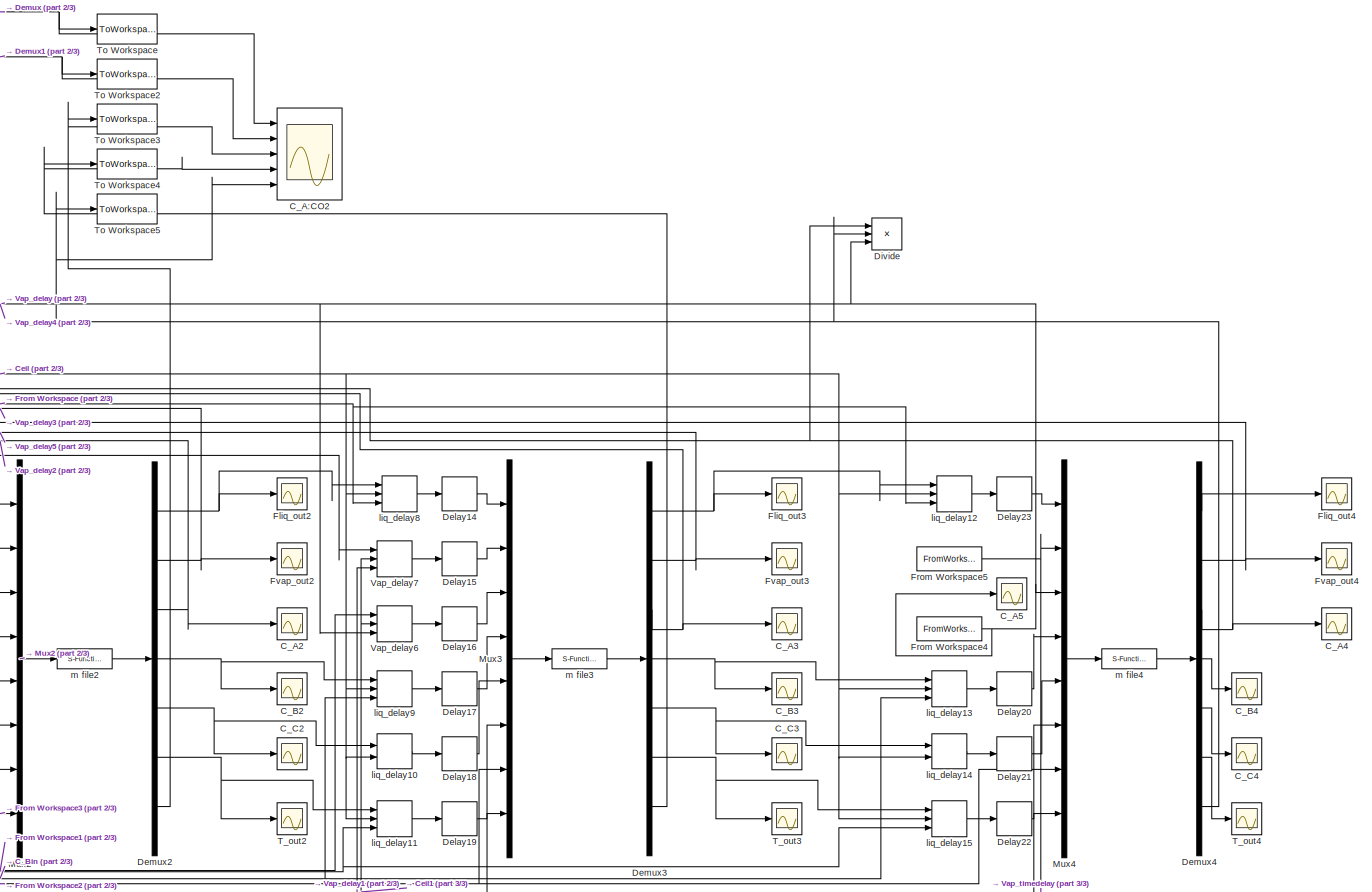
[diagram: root canvas - part 1/3, right side, full height]
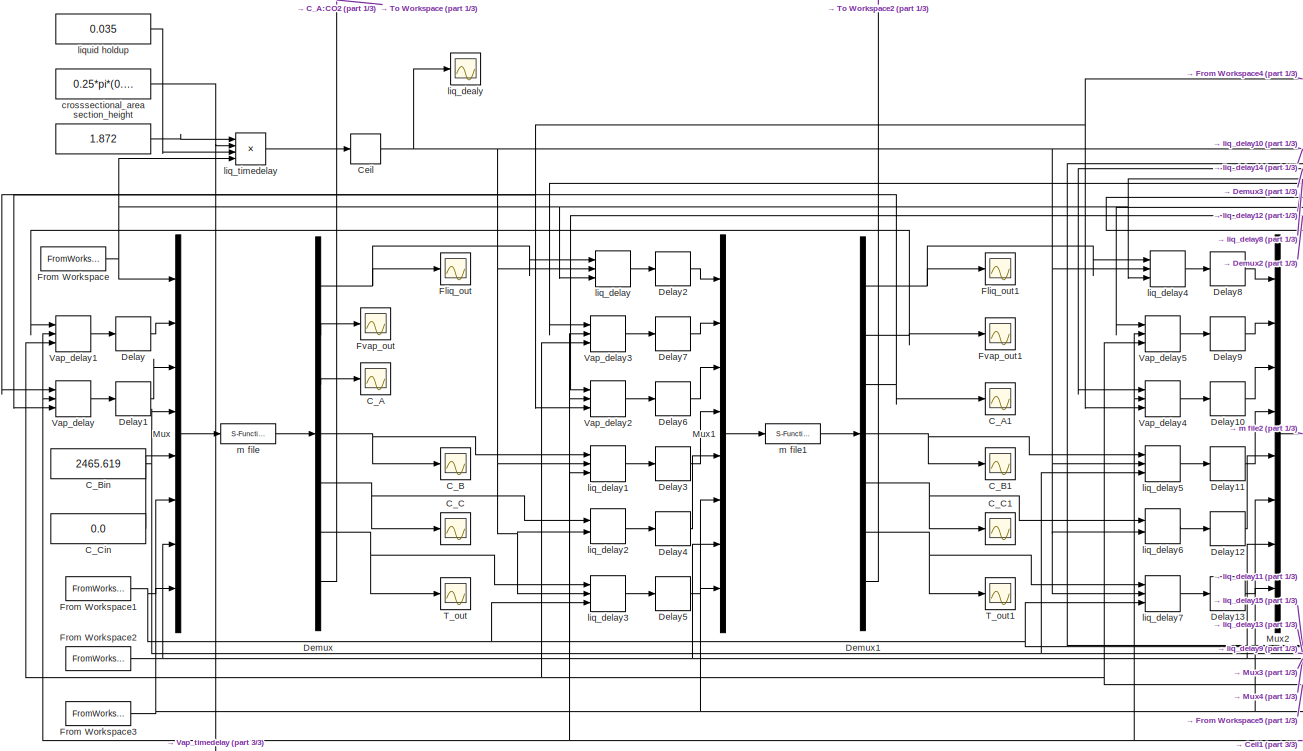
[diagram: root canvas - part 2/3, middle left region]
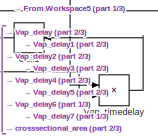
[diagram: root canvas - part 3/3, bottom right region]
MODEL slx_84e19ae81417
KIND model
CONFIG AbsTol = 1E-8
CONFIG EnableMultiTasking = off
CONFIG FixedStep = 1
CONFIG MaxStep = auto
CONFIG MinStep = auto
CONFIG RelTol = 1e-5
CONFIG SampleTimeConstraint = Unconstrained
CONFIG SolverName = VariableStepAuto
CONFIG StartTime = 0
CONFIG StopTime = 5631
BLOCK [Scope] C_A
  Floating = off
  NumInputPorts = 1
  Ports = [1]
  ScopeSpecificationString = Simulink.scopes.TimeScopeBlockCfg('CurrentConfiguration', extmgr.ConfigurationSet(extmgr.Configuration('Core','General UI',true),extmgr.Configuration('Core','Source UI',true),extmgr.Configuration('Sources','WiredSimulink',true,'DataLoggingVariableName','ScopeData2','DataLoggingSaveFormat','Array'),extmgr.Configuration('Visuals','Time Domain',true,'SerializedDisplays',{struct('MinYLimReal','-0.0038...<+1464ch>
BLOCK [Scope] C_A1
  Floating = off
  NumInputPorts = 1
  Ports = [1]
  ScopeSpecificationString = Simulink.scopes.TimeScopeBlockCfg('CurrentConfiguration', extmgr.ConfigurationSet(extmgr.Configuration('Core','General UI',true),extmgr.Configuration('Core','Source UI',true),extmgr.Configuration('Sources','WiredSimulink',true,'DataLoggingVariableName','ScopeData2','DataLoggingSaveFormat','Array'),extmgr.Configuration('Visuals','Time Domain',true,'SerializedDisplays',{struct('MinYLimReal','0.00000...<+1479ch>
BLOCK [Scope] C_A2
  Floating = off
  NumInputPorts = 1
  Ports = [1]
  ScopeSpecificationString = Simulink.scopes.TimeScopeBlockCfg('CurrentConfiguration', extmgr.ConfigurationSet(extmgr.Configuration('Core','General UI',true),extmgr.Configuration('Core','Source UI',true),extmgr.Configuration('Sources','WiredSimulink',true,'DataLoggingVariableName','ScopeData8','DataLoggingSaveFormat','Array'),extmgr.Configuration('Visuals','Time Domain',true,'SerializedDisplays',{struct('MinYLimReal','-0.0961...<+1454ch>
BLOCK [Scope] C_A3
  Floating = off
  NumInputPorts = 1
  Ports = [1]
  ScopeSpecificationString = Simulink.scopes.TimeScopeBlockCfg('CurrentConfiguration', extmgr.ConfigurationSet(extmgr.Configuration('Core','General UI',true),extmgr.Configuration('Core','Source UI',true),extmgr.Configuration('Sources','WiredSimulink',true,'DataLoggingVariableName','ScopeData14','DataLoggingSaveFormat','Array'),extmgr.Configuration('Visuals','Time Domain',true,'SerializedDisplays',{struct('MinYLimReal','-0.932...<+1463ch>
BLOCK [Scope] C_A4
  Floating = off
  NumInputPorts = 1
  Ports = [1]
  ScopeSpecificationString = Simulink.scopes.TimeScopeBlockCfg('CurrentConfiguration', extmgr.ConfigurationSet(extmgr.Configuration('Core','General UI',true),extmgr.Configuration('Core','Source UI',true),extmgr.Configuration('Sources','WiredSimulink',true,'DataLoggingVariableName','ScopeData15','DataLoggingSaveFormat','Array'),extmgr.Configuration('Visuals','Time Domain',true,'SerializedDisplays',{struct('MinYLimReal','-0.092...<+1455ch>
BLOCK [Scope] C_A5
  Floating = off
  NumInputPorts = 1
  Ports = [1]
  ScopeSpecificationString = Simulink.scopes.TimeScopeBlockCfg('CurrentConfiguration', extmgr.ConfigurationSet(extmgr.Configuration('Core','General UI',true),extmgr.Configuration('Core','Source UI',true),extmgr.Configuration('Sources','WiredSimulink',true,'DataLoggingVariableName','ScopeData1','DataLoggingSaveFormat','Array'),extmgr.Configuration('Visuals','Time Domain',true,'SerializedDisplays',{struct('MinYLimReal','6.25445...<+1576ch>
BLOCK [Scope] C_A:CO2
  Floating = off
  NumInputPorts = 5
  Ports = [5]
  ScopeSpecificationString = Simulink.scopes.TimeScopeBlockCfg('CurrentConfiguration', extmgr.ConfigurationSet(extmgr.Configuration('Core','General UI',true,'FigureColor',[0 0 0]),extmgr.Configuration('Core','Source UI',true),extmgr.Configuration('Sources','WiredSimulink',true,'DataLoggingVariableName','CA_all','DataLoggingSaveFormat','Array'),extmgr.Configuration('Visuals','Time Domain',true,'PlotType','Line','SerializedDisp...<+2349ch>
BLOCK [Scope] C_B
  Floating = off
  NumInputPorts = 1
  Ports = [1]
  ScopeSpecificationString = Simulink.scopes.TimeScopeBlockCfg('CurrentConfiguration', extmgr.ConfigurationSet(extmgr.Configuration('Core','General UI',true),extmgr.Configuration('Core','Source UI',true),extmgr.Configuration('Sources','WiredSimulink',true,'DataLoggingVariableName','Y1','DataLoggingSaveFormat','Array','DataLogging',true),extmgr.Configuration('Visuals','Time Domain',true,'SerializedDisplays',{struct('MinYLimRea...<+1479ch>
BLOCK [Scope] C_B1
  Floating = off
  NumInputPorts = 1
  Ports = [1]
  ScopeSpecificationString = Simulink.scopes.TimeScopeBlockCfg('CurrentConfiguration', extmgr.ConfigurationSet(extmgr.Configuration('Core','General UI',true),extmgr.Configuration('Core','Source UI',true),extmgr.Configuration('Sources','WiredSimulink',true,'DataLoggingVariableName','ScopeData3','DataLoggingSaveFormat','Array','DataLogging',true),extmgr.Configuration('Visuals','Time Domain',true,'SerializedDisplays',{struct('Mi...<+1494ch>
BLOCK [Scope] C_B2
  Floating = off
  NumInputPorts = 1
  Ports = [1]
  ScopeSpecificationString = Simulink.scopes.TimeScopeBlockCfg('CurrentConfiguration', extmgr.ConfigurationSet(extmgr.Configuration('Core','General UI',true),extmgr.Configuration('Core','Source UI',true),extmgr.Configuration('Sources','WiredSimulink',true,'DataLoggingVariableName','ScopeData9','DataLoggingSaveFormat','Array','DataLogging',true),extmgr.Configuration('Visuals','Time Domain',true,'SerializedDisplays',{struct('Mi...<+1466ch>
BLOCK [Scope] C_B3
  Floating = off
  NumInputPorts = 1
  Ports = [1]
  ScopeSpecificationString = Simulink.scopes.TimeScopeBlockCfg('CurrentConfiguration', extmgr.ConfigurationSet(extmgr.Configuration('Core','General UI',true),extmgr.Configuration('Core','Source UI',true),extmgr.Configuration('Sources','WiredSimulink',true,'DataLoggingVariableName','ScopeData16','DataLoggingSaveFormat','Array','DataLogging',true),extmgr.Configuration('Visuals','Time Domain',true,'SerializedDisplays',{struct('M...<+1489ch>
BLOCK [Scope] C_B4
  Floating = off
  NumInputPorts = 1
  Ports = [1]
  ScopeSpecificationString = Simulink.scopes.TimeScopeBlockCfg('CurrentConfiguration', extmgr.ConfigurationSet(extmgr.Configuration('Core','General UI',true),extmgr.Configuration('Core','Source UI',true),extmgr.Configuration('Sources','WiredSimulink',true,'DataLoggingVariableName','ScopeData17','DataLoggingSaveFormat','Array','DataLogging',true),extmgr.Configuration('Visuals','Time Domain',true,'SerializedDisplays',{struct('M...<+1491ch>
BLOCK [Constant] C_Bin
  Value = 2465.619
BLOCK [Scope] C_C
  Floating = off
  NumInputPorts = 1
  Ports = [1]
  ScopeSpecificationString = Simulink.scopes.TimeScopeBlockCfg('CurrentConfiguration', extmgr.ConfigurationSet(extmgr.Configuration('Core','General UI',true),extmgr.Configuration('Core','Source UI',true),extmgr.Configuration('Sources','WiredSimulink',true,'DataLoggingVariableName','ScopeData1','DataLoggingSaveFormat','Array'),extmgr.Configuration('Visuals','Time Domain',true,'SerializedDisplays',{struct('MinYLimReal','-0.0003...<+1472ch>
BLOCK [Scope] C_C1
  Floating = off
  NumInputPorts = 1
  Ports = [1]
  ScopeSpecificationString = Simulink.scopes.TimeScopeBlockCfg('CurrentConfiguration', extmgr.ConfigurationSet(extmgr.Configuration('Core','General UI',true),extmgr.Configuration('Core','Source UI',true),extmgr.Configuration('Sources','WiredSimulink',true,'DataLoggingVariableName','ScopeData4','DataLoggingSaveFormat','Array'),extmgr.Configuration('Visuals','Time Domain',true,'SerializedDisplays',{struct('MinYLimReal','-642696...<+2131ch>
BLOCK [Scope] C_C2
  Floating = off
  NumInputPorts = 1
  Ports = [1]
  ScopeSpecificationString = Simulink.scopes.TimeScopeBlockCfg('CurrentConfiguration', extmgr.ConfigurationSet(extmgr.Configuration('Core','General UI',true),extmgr.Configuration('Core','Source UI',true),extmgr.Configuration('Sources','WiredSimulink',true,'DataLoggingVariableName','ScopeData10','DataLoggingSaveFormat','Array'),extmgr.Configuration('Visuals','Time Domain',true,'SerializedDisplays',{struct('MinYLimReal','-0.000...<+1476ch>
BLOCK [Scope] C_C3
  Floating = off
  NumInputPorts = 1
  Ports = [1]
  ScopeSpecificationString = Simulink.scopes.TimeScopeBlockCfg('CurrentConfiguration', extmgr.ConfigurationSet(extmgr.Configuration('Core','General UI',true),extmgr.Configuration('Core','Source UI',true),extmgr.Configuration('Sources','WiredSimulink',true,'DataLoggingVariableName','ScopeData18','DataLoggingSaveFormat','Array'),extmgr.Configuration('Visuals','Time Domain',true,'SerializedDisplays',{struct('MinYLimReal','-0.000...<+1499ch>
BLOCK [Scope] C_C4
  Floating = off
  NumInputPorts = 1
  Ports = [1]
  ScopeSpecificationString = Simulink.scopes.TimeScopeBlockCfg('CurrentConfiguration', extmgr.ConfigurationSet(extmgr.Configuration('Core','General UI',true),extmgr.Configuration('Core','Source UI',true),extmgr.Configuration('Sources','WiredSimulink',true,'DataLoggingVariableName','ScopeData19','DataLoggingSaveFormat','Array'),extmgr.Configuration('Visuals','Time Domain',true,'SerializedDisplays',{struct('MinYLimReal','-0.015...<+1476ch>
BLOCK [Constant] C_Cin
  Value = 0.0
BLOCK [Rounding] Ceil
  Operator = ceil
BLOCK [Rounding] Ceil1
  Operator = ceil
BLOCK [Delay] Delay
  DelayLength = 1
  InitialCondition = 0
  InputPortMap = u0
  Ports = [1, 1]
BLOCK [Delay] Delay1
  DelayLength = 1
  InitialCondition = 0
  InputPortMap = u0
  Ports = [1, 1]
BLOCK [Delay] Delay10
  DelayLength = 1
  InitialCondition = 0
  InputPortMap = u0
  Ports = [1, 1]
BLOCK [Delay] Delay11
  DelayLength = 1
  InitialCondition = 0
  InputPortMap = u0
  Ports = [1, 1]
BLOCK [Delay] Delay12
  DelayLength = 1
  InitialCondition = 0
  InputPortMap = u0
  Ports = [1, 1]
BLOCK [Delay] Delay13
  DelayLength = 1
  InitialCondition = 0
  InputPortMap = u0
  Ports = [1, 1]
BLOCK [Delay] Delay14
  DelayLength = 1
  InitialCondition = 0
  InputPortMap = u0
  Ports = [1, 1]
BLOCK [Delay] Delay15
  DelayLength = 1
  InitialCondition = 0
  InputPortMap = u0
  Ports = [1, 1]
BLOCK [Delay] Delay16
  DelayLength = 1
  InitialCondition = 0
  InputPortMap = u0
  Ports = [1, 1]
BLOCK [Delay] Delay17
  DelayLength = 1
  InitialCondition = 0
  InputPortMap = u0
  Ports = [1, 1]
BLOCK [Delay] Delay18
  DelayLength = 1
  InitialCondition = 0
  InputPortMap = u0
  Ports = [1, 1]
BLOCK [Delay] Delay19
  DelayLength = 1
  InitialCondition = 0
  InputPortMap = u0
  Ports = [1, 1]
BLOCK [Delay] Delay2
  DelayLength = 1
  InitialCondition = 0
  InputPortMap = u0
  Ports = [1, 1]
BLOCK [Delay] Delay20
  DelayLength = 1
  InitialCondition = 0
  InputPortMap = u0
  Ports = [1, 1]
BLOCK [Delay] Delay21
  DelayLength = 1
  InitialCondition = 0
  InputPortMap = u0
  Ports = [1, 1]
BLOCK [Delay] Delay22
  DelayLength = 1
  InitialCondition = 0
  InputPortMap = u0
  Ports = [1, 1]
BLOCK [Delay] Delay23
  DelayLength = 1
  InitialCondition = 0
  InputPortMap = u0
  Ports = [1, 1]
BLOCK [Delay] Delay3
  DelayLength = 1
  InitialCondition = 0
  InputPortMap = u0
  Ports = [1, 1]
BLOCK [Delay] Delay4
  DelayLength = 1
  InitialCondition = 0
  InputPortMap = u0
  Ports = [1, 1]
BLOCK [Delay] Delay5
  DelayLength = 1
  InitialCondition = 0
  InputPortMap = u0
  Ports = [1, 1]
BLOCK [Delay] Delay6
  DelayLength = 1
  InitialCondition = 0
  InputPortMap = u0
  Ports = [1, 1]
BLOCK [Delay] Delay7
  DelayLength = 1
  InitialCondition = 0
  InputPortMap = u0
  Ports = [1, 1]
BLOCK [Delay] Delay8
  DelayLength = 1
  InitialCondition = 0
  InputPortMap = u0
  Ports = [1, 1]
BLOCK [Delay] Delay9
  DelayLength = 1
  InitialCondition = 0
  InputPortMap = u0
  Ports = [1, 1]
BLOCK [Demux] Demux
  DisplayOption = none
  Outputs = 7
  Ports = [1, 7]
BLOCK [Demux] Demux1
  DisplayOption = none
  Outputs = 7
  Ports = [1, 7]
BLOCK [Demux] Demux2
  DisplayOption = none
  Outputs = 7
  Ports = [1, 7]
BLOCK [Demux] Demux3
  DisplayOption = none
  Outputs = 7
  Ports = [1, 7]
BLOCK [Demux] Demux4
  DisplayOption = none
  Outputs = 7
  Ports = [1, 7]
BLOCK [Product] Divide
  Commented = on
  Inputs = */*
  Ports = [3, 1]
BLOCK [Scope] Fliq_out
  Floating = off
  NumInputPorts = 1
  Ports = [1]
  ScopeSpecificationString = Simulink.scopes.TimeScopeBlockCfg('CurrentConfiguration', extmgr.ConfigurationSet(extmgr.Configuration('Core','General UI',true),extmgr.Configuration('Core','Source UI',true),extmgr.Configuration('Sources','WiredSimulink',true,'DataLoggingVariableName','ScopeData1','DataLoggingSaveFormat','Array'),extmgr.Configuration('Visuals','Time Domain',true,'SerializedDisplays',{struct('MinYLimReal','0.00006...<+1492ch>
BLOCK [Scope] Fliq_out1
  Floating = off
  NumInputPorts = 1
  Ports = [1]
  ScopeSpecificationString = Simulink.scopes.TimeScopeBlockCfg('CurrentConfiguration', extmgr.ConfigurationSet(extmgr.Configuration('Core','General UI',true),extmgr.Configuration('Core','Source UI',true),extmgr.Configuration('Sources','WiredSimulink',true,'DataLoggingVariableName','ScopeData5','DataLoggingSaveFormat','Array'),extmgr.Configuration('Visuals','Time Domain',true,'SerializedDisplays',{struct('MinYLimReal','-0.0000...<+1461ch>
BLOCK [Scope] Fliq_out2
  Floating = off
  NumInputPorts = 1
  Ports = [1]
  ScopeSpecificationString = Simulink.scopes.TimeScopeBlockCfg('CurrentConfiguration', extmgr.ConfigurationSet(extmgr.Configuration('Core','General UI',true),extmgr.Configuration('Core','Source UI',true),extmgr.Configuration('Sources','WiredSimulink',true,'DataLoggingVariableName','ScopeData11','DataLoggingSaveFormat','Array'),extmgr.Configuration('Visuals','Time Domain',true,'SerializedDisplays',{struct('MinYLimReal','-0.000...<+1462ch>
BLOCK [Scope] Fliq_out3
  Floating = off
  NumInputPorts = 1
  Ports = [1]
  ScopeSpecificationString = Simulink.scopes.TimeScopeBlockCfg('CurrentConfiguration', extmgr.ConfigurationSet(extmgr.Configuration('Core','General UI',true),extmgr.Configuration('Core','Source UI',true),extmgr.Configuration('Sources','WiredSimulink',true,'DataLoggingVariableName','ScopeData20','DataLoggingSaveFormat','Array'),extmgr.Configuration('Visuals','Time Domain',true,'SerializedDisplays',{struct('MinYLimReal','-0.000...<+1462ch>
BLOCK [Scope] Fliq_out4
  Floating = off
  NumInputPorts = 1
  Ports = [1]
  ScopeSpecificationString = Simulink.scopes.TimeScopeBlockCfg('CurrentConfiguration', extmgr.ConfigurationSet(extmgr.Configuration('Core','General UI',true),extmgr.Configuration('Core','Source UI',true),extmgr.Configuration('Sources','WiredSimulink',true,'DataLoggingVariableName','ScopeData21','DataLoggingSaveFormat','Array'),extmgr.Configuration('Visuals','Time Domain',true,'SerializedDisplays',{struct('MinYLimReal','-0.000...<+1462ch>
BLOCK [FromWorkspace] From Workspace
  OutputAfterFinalValue = Holding final value
  SampleTime = 43
  VariableName = Fliq_in
BLOCK [FromWorkspace] From Workspace1
  OutputAfterFinalValue = Holding final value
  SampleTime = 43
  VariableName = Tliq_in
BLOCK [FromWorkspace] From Workspace2
  OutputAfterFinalValue = Holding final value
  SampleTime = 43
  VariableName = P_bot
BLOCK [FromWorkspace] From Workspace3
  OutputAfterFinalValue = Holding final value
  SampleTime = 43
  VariableName = P_top
BLOCK [FromWorkspace] From Workspace4
  OutputAfterFinalValue = Holding final value
  SampleTime = 43
  VariableName = C_Ain
BLOCK [FromWorkspace] From Workspace5
  OutputAfterFinalValue = Holding final value
  SampleTime = 43
  VariableName = Fvap
BLOCK [Scope] Fvap_out
  Floating = off
  NumInputPorts = 1
  Ports = [1]
  ScopeSpecificationString = Simulink.scopes.TimeScopeBlockCfg('CurrentConfiguration', extmgr.ConfigurationSet(extmgr.Configuration('Core','General UI',true),extmgr.Configuration('Core','Source UI',true),extmgr.Configuration('Sources','WiredSimulink',true,'DataLoggingVariableName','ScopeData6','DataLoggingSaveFormat','Array'),extmgr.Configuration('Visuals','Time Domain',true,'SerializedDisplays',{struct('MinYLimReal','-0.0000...<+1478ch>
BLOCK [Scope] Fvap_out1
  Floating = off
  NumInputPorts = 1
  Ports = [1]
  ScopeSpecificationString = Simulink.scopes.TimeScopeBlockCfg('CurrentConfiguration', extmgr.ConfigurationSet(extmgr.Configuration('Core','General UI',true),extmgr.Configuration('Core','Source UI',true),extmgr.Configuration('Sources','WiredSimulink',true,'DataLoggingVariableName','ScopeData6','DataLoggingSaveFormat','Array'),extmgr.Configuration('Visuals','Time Domain',true,'SerializedDisplays',{struct('MinYLimReal','0.19043...<+1451ch>
BLOCK [Scope] Fvap_out2
  Floating = off
  NumInputPorts = 1
  Ports = [1]
  ScopeSpecificationString = Simulink.scopes.TimeScopeBlockCfg('CurrentConfiguration', extmgr.ConfigurationSet(extmgr.Configuration('Core','General UI',true),extmgr.Configuration('Core','Source UI',true),extmgr.Configuration('Sources','WiredSimulink',true,'DataLoggingVariableName','ScopeData12','DataLoggingSaveFormat','Array'),extmgr.Configuration('Visuals','Time Domain',true,'SerializedDisplays',{struct('MinYLimReal','0.1884...<+1452ch>
BLOCK [Scope] Fvap_out3
  Floating = off
  NumInputPorts = 1
  Ports = [1]
  ScopeSpecificationString = Simulink.scopes.TimeScopeBlockCfg('CurrentConfiguration', extmgr.ConfigurationSet(extmgr.Configuration('Core','General UI',true),extmgr.Configuration('Core','Source UI',true),extmgr.Configuration('Sources','WiredSimulink',true,'DataLoggingVariableName','ScopeData22','DataLoggingSaveFormat','Array'),extmgr.Configuration('Visuals','Time Domain',true,'SerializedDisplays',{struct('MinYLimReal','-0.000...<+1454ch>
BLOCK [Scope] Fvap_out4
  Floating = off
  NumInputPorts = 1
  Ports = [1]
  ScopeSpecificationString = Simulink.scopes.TimeScopeBlockCfg('CurrentConfiguration', extmgr.ConfigurationSet(extmgr.Configuration('Core','General UI',true),extmgr.Configuration('Core','Source UI',true),extmgr.Configuration('Sources','WiredSimulink',true,'DataLoggingVariableName','ScopeData23','DataLoggingSaveFormat','Array'),extmgr.Configuration('Visuals','Time Domain',true,'SerializedDisplays',{struct('MinYLimReal','0.0016...<+1452ch>
BLOCK [Mux] Mux
  Inputs = 8
  Ports = [8, 1]
BLOCK [Mux] Mux1
  Inputs = 8
  Ports = [8, 1]
BLOCK [Mux] Mux2
  Inputs = 8
  Ports = [8, 1]
BLOCK [Mux] Mux3
  Inputs = 8
  Ports = [8, 1]
BLOCK [Mux] Mux4
  Inputs = 8
  Ports = [8, 1]
BLOCK [Scope] T_out
  Floating = off
  NumInputPorts = 1
  Ports = [1]
  ScopeSpecificationString = Simulink.scopes.TimeScopeBlockCfg('CurrentConfiguration', extmgr.ConfigurationSet(extmgr.Configuration('Core','General UI',true),extmgr.Configuration('Core','Source UI',true),extmgr.Configuration('Sources','WiredSimulink',true,'DataLoggingVariableName','ScopeData4','DataLoggingSaveFormat','Array'),extmgr.Configuration('Visuals','Time Domain',true,'SerializedDisplays',{struct('MinYLimReal','304.739...<+1511ch>
BLOCK [Scope] T_out1
  Floating = off
  NumInputPorts = 1
  Ports = [1]
  ScopeSpecificationString = Simulink.scopes.TimeScopeBlockCfg('CurrentConfiguration', extmgr.ConfigurationSet(extmgr.Configuration('Core','General UI',true),extmgr.Configuration('Core','Source UI',true),extmgr.Configuration('Sources','WiredSimulink',true,'DataLoggingVariableName','ScopeData7','DataLoggingSaveFormat','Array'),extmgr.Configuration('Visuals','Time Domain',true,'SerializedDisplays',{struct('MinYLimReal','323.736...<+1512ch>
BLOCK [Scope] T_out2
  Floating = off
  NumInputPorts = 1
  Ports = [1]
  ScopeSpecificationString = Simulink.scopes.TimeScopeBlockCfg('CurrentConfiguration', extmgr.ConfigurationSet(extmgr.Configuration('Core','General UI',true),extmgr.Configuration('Core','Source UI',true),extmgr.Configuration('Sources','WiredSimulink',true,'DataLoggingVariableName','ScopeData13','DataLoggingSaveFormat','Array'),extmgr.Configuration('Visuals','Time Domain',true,'SerializedDisplays',{struct('MinYLimReal','323.73...<+1487ch>
BLOCK [Scope] T_out3
  Floating = off
  NumInputPorts = 1
  Ports = [1]
  ScopeSpecificationString = Simulink.scopes.TimeScopeBlockCfg('CurrentConfiguration', extmgr.ConfigurationSet(extmgr.Configuration('Core','General UI',true),extmgr.Configuration('Core','Source UI',true),extmgr.Configuration('Sources','WiredSimulink',true,'DataLoggingVariableName','ScopeData24','DataLoggingSaveFormat','Array'),extmgr.Configuration('Visuals','Time Domain',true,'SerializedDisplays',{struct('MinYLimReal','294.73...<+1513ch>
BLOCK [Scope] T_out4
  Floating = off
  NumInputPorts = 1
  Ports = [1]
  ScopeSpecificationString = Simulink.scopes.TimeScopeBlockCfg('CurrentConfiguration', extmgr.ConfigurationSet(extmgr.Configuration('Core','General UI',true),extmgr.Configuration('Core','Source UI',true),extmgr.Configuration('Sources','WiredSimulink',true,'DataLoggingVariableName','ScopeData25','DataLoggingSaveFormat','Array'),extmgr.Configuration('Visuals','Time Domain',true,'SerializedDisplays',{struct('MinYLimReal','323.19...<+1500ch>
BLOCK [ToWorkspace] To Workspace
  FixptAsFi = on
  MaxDataPoints = inf
  Ports = [1]
  SampleTime = 1
  Save2DSignal = 2-D array (concatenate along first dimension)
  VariableName = CA1
BLOCK [ToWorkspace] To Workspace2
  FixptAsFi = on
  MaxDataPoints = inf
  Ports = [1]
  SampleTime = 1
  Save2DSignal = 2-D array (concatenate along first dimension)
  VariableName = CA2
BLOCK [ToWorkspace] To Workspace3
  FixptAsFi = on
  MaxDataPoints = inf
  Ports = [1]
  SampleTime = 1
  Save2DSignal = 2-D array (concatenate along first dimension)
  VariableName = CA3
BLOCK [ToWorkspace] To Workspace4
  FixptAsFi = on
  MaxDataPoints = inf
  Ports = [1]
  SampleTime = 1
  Save2DSignal = 2-D array (concatenate along first dimension)
  VariableName = CA4
BLOCK [ToWorkspace] To Workspace5
  FixptAsFi = on
  MaxDataPoints = inf
  Ports = [1]
  SampleTime = 1
  Save2DSignal = 2-D array (concatenate along first dimension)
  VariableName = CA5
BLOCK [Delay] Vap_delay
  DelayLength = 1
  DelayLengthSource = Input port
  InitialCondition = 0
  InitialConditionSource = Input port
  InputPortMap = u0,p1,p4
  Ports = [3, 1]
BLOCK [Delay] Vap_delay1
  DelayLength = 1
  DelayLengthSource = Input port
  InitialCondition = 1
  InitialConditionSource = Input port
  InputPortMap = u0,p1,p4
  Ports = [3, 1]
BLOCK [Delay] Vap_delay2
  DelayLength = 1
  DelayLengthSource = Input port
  InitialCondition = 0
  InitialConditionSource = Input port
  InputPortMap = u0,p1,p4
  Ports = [3, 1]
BLOCK [Delay] Vap_delay3
  DelayLength = 1
  DelayLengthSource = Input port
  InitialCondition = 1
  InitialConditionSource = Input port
  InputPortMap = u0,p1,p4
  Ports = [3, 1]
BLOCK [Delay] Vap_delay4
  DelayLength = 1
  DelayLengthSource = Input port
  InitialCondition = 0
  InitialConditionSource = Input port
  InputPortMap = u0,p1,p4
  Ports = [3, 1]
BLOCK [Delay] Vap_delay5
  DelayLength = 1
  DelayLengthSource = Input port
  InitialCondition = 1
  InitialConditionSource = Input port
  InputPortMap = u0,p1,p4
  Ports = [3, 1]
BLOCK [Delay] Vap_delay6
  DelayLength = 1
  DelayLengthSource = Input port
  InitialCondition = 0
  InitialConditionSource = Input port
  InputPortMap = u0,p1,p4
  Ports = [3, 1]
BLOCK [Delay] Vap_delay7
  DelayLength = 1
  DelayLengthSource = Input port
  InitialCondition = 1
  InitialConditionSource = Input port
  InputPortMap = u0,p1,p4
  Ports = [3, 1]
BLOCK [Product] Vap_timedelay
  Inputs = */
  Ports = [2, 1]
BLOCK [Constant] crosssectional_area
  Value = 0.25*pi*(0.26472)^2
BLOCK [Scope] liq_dealy
  Floating = off
  NumInputPorts = 1
  Ports = [1]
  ScopeSpecificationString = Simulink.scopes.TimeScopeBlockCfg('CurrentConfiguration', extmgr.ConfigurationSet(extmgr.Configuration('Core','General UI',true),extmgr.Configuration('Core','Source UI',true),extmgr.Configuration('Sources','WiredSimulink',true,'DataLoggingVariableName','ScopeData1','DataLoggingSaveFormat','Array'),extmgr.Configuration('Visuals','Time Domain',true,'SerializedDisplays',{struct('MinYLimReal','42.0000...<+1535ch>
BLOCK [Delay] liq_delay
  DelayLength = 1
  DelayLengthSource = Input port
  InitialCondition = 1
  InitialConditionSource = Input port
  InputPortMap = u0,p1,p4
  Ports = [3, 1]
BLOCK [Delay] liq_delay1
  DelayLength = 1
  DelayLengthSource = Input port
  InitialCondition = 1
  InitialConditionSource = Input port
  InputPortMap = u0,p1,p4
  Ports = [3, 1]
BLOCK [Delay] liq_delay10
  DelayLength = 1
  DelayLengthSource = Input port
  InitialCondition = 0
  InputPortMap = u0,p1
  Ports = [2, 1]
BLOCK [Delay] liq_delay11
  DelayLength = 1
  DelayLengthSource = Input port
  DelayLengthUpperLimit = 1000
  InitialCondition = 298
  InitialConditionSource = Input port
  InputPortMap = u0,p1,p4
  Ports = [3, 1]
BLOCK [Delay] liq_delay12
  DelayLength = 1
  DelayLengthSource = Input port
  DelayLengthUpperLimit = 1000
  InitialCondition = 0
  InitialConditionSource = Input port
  InputPortMap = u0,p1,p4
  Ports = [3, 1]
BLOCK [Delay] liq_delay13
  DelayLength = 1
  DelayLengthSource = Input port
  InitialCondition = 0
  InitialConditionSource = Input port
  InputPortMap = u0,p1,p4
  Ports = [3, 1]
BLOCK [Delay] liq_delay14
  DelayLength = 1
  DelayLengthSource = Input port
  InitialCondition = 0
  InputPortMap = u0,p1
  Ports = [2, 1]
BLOCK [Delay] liq_delay15
  DelayLength = 1
  DelayLengthSource = Input port
  DelayLengthUpperLimit = 1000
  InitialCondition = 298
  InitialConditionSource = Input port
  InputPortMap = u0,p1,p4
  Ports = [3, 1]
BLOCK [Delay] liq_delay2
  DelayLength = 1
  DelayLengthSource = Input port
  InitialCondition = 0
  InputPortMap = u0,p1
  Ports = [2, 1]
BLOCK [Delay] liq_delay3
  DelayLength = 1
  DelayLengthSource = Input port
  DelayLengthUpperLimit = 1000
  InitialCondition = 298
  InitialConditionSource = Input port
  InputPortMap = u0,p1,p4
  Ports = [3, 1]
BLOCK [Delay] liq_delay4
  DelayLength = 1
  DelayLengthSource = Input port
  InitialCondition = 1
  InitialConditionSource = Input port
  InputPortMap = u0,p1,p4
  Ports = [3, 1]
BLOCK [Delay] liq_delay5
  DelayLength = 1
  DelayLengthSource = Input port
  InitialCondition = 1
  InitialConditionSource = Input port
  InputPortMap = u0,p1,p4
  Ports = [3, 1]
BLOCK [Delay] liq_delay6
  DelayLength = 1
  DelayLengthSource = Input port
  InitialCondition = 0
  InputPortMap = u0,p1
  Ports = [2, 1]
BLOCK [Delay] liq_delay7
  DelayLength = 1
  DelayLengthSource = Input port
  DelayLengthUpperLimit = 1000
  InitialCondition = 298
  InitialConditionSource = Input port
  InputPortMap = u0,p1,p4
  Ports = [3, 1]
BLOCK [Delay] liq_delay8
  DelayLength = 1
  DelayLengthSource = Input port
  InitialCondition = 1
  InitialConditionSource = Input port
  InputPortMap = u0,p1,p4
  Ports = [3, 1]
BLOCK [Delay] liq_delay9
  DelayLength = 1
  DelayLengthSource = Input port
  InitialCondition = 0
  InitialConditionSource = Input port
  InputPortMap = u0,p1,p4
  Ports = [3, 1]
BLOCK [Product] liq_timedelay
  Inputs = ***/
  Ports = [4, 1]
BLOCK [Constant] liquid holdup
  Value = 0.035
BLOCK [S-Function] m file
  EnableBusSupport = off
  FunctionName = simple_cstr
  NameLocation = top
  Parameters = [500.6;1;1005.5;4380;1;1263;],[7.005e-05;0.0075752;0;2465.619;0;309.2792;]
  Ports = [1, 1]
  SFcnIsStateOwnerBlock = off
  SFunctionDeploymentMode = off
BLOCK [S-Function] m file1
  EnableBusSupport = off
  FunctionName = simple_cstr
  NameLocation = top
  Parameters = [500.6;1;1005.5;4380;1;1263;],[7.005e-05;0.0075752;0;2465.619;0;309.2792;]
  Ports = [1, 1]
  SFcnIsStateOwnerBlock = off
  SFunctionDeploymentMode = off
BLOCK [S-Function] m file2
  EnableBusSupport = off
  FunctionName = simple_cstr
  NameLocation = top
  Parameters = [500.6;1;1005.5;4380;1;1263;],[7.005e-05;0.0075752;0;2465.619;0;309.2792;]
  Ports = [1, 1]
  SFcnIsStateOwnerBlock = off
  SFunctionDeploymentMode = off
BLOCK [S-Function] m file3
  EnableBusSupport = off
  FunctionName = simple_cstr
  NameLocation = top
  Parameters = [500.6;1;1005.5;4380;1;1263;],[7.005e-05;0.0075752;0;2465.619;0;309.2792;]
  Ports = [1, 1]
  SFcnIsStateOwnerBlock = off
  SFunctionDeploymentMode = off
BLOCK [S-Function] m file4
  EnableBusSupport = off
  FunctionName = simple_cstr
  NameLocation = top
  Parameters = [500.6;1;1005.5;4380;1;1263;],[7.005e-05;0.0075752;0;2465.619;0;309.2792;]
  Ports = [1, 1]
  SFcnIsStateOwnerBlock = off
  SFunctionDeploymentMode = off
BLOCK [Constant] section_height
  Value = 1.872
NET C_Bin:1 -> Mux:4, liq_delay13:3, liq_delay1:3, liq_delay5:3, liq_delay9:3
LINE C_Cin:1 -> Mux:5
NET Ceil1:1 -> Vap_delay1:2, Vap_delay2:2, Vap_delay3:2, Vap_delay4:2, Vap_delay5:2, Vap_delay6:2, Vap_delay7:2, Vap_delay:2
NET Ceil:1 -> liq_dealy:1, liq_delay10:2, liq_delay11:2, liq_delay12:2, liq_delay13:2, liq_delay14:2, liq_delay15:2, liq_delay1:2, liq_delay2:2, liq_delay3:2, liq_delay4:2, liq_delay5:2, liq_delay6:2, liq_delay7:2, liq_delay8:2, liq_delay9:2, liq_delay:2
LINE Delay10:1 -> Mux2:3
LINE Delay11:1 -> Mux2:4
LINE Delay12:1 -> Mux2:5
LINE Delay13:1 -> Mux2:6
LINE Delay14:1 -> Mux3:1
LINE Delay15:1 -> Mux3:2
LINE Delay16:1 -> Mux3:3
LINE Delay17:1 -> Mux3:4
LINE Delay18:1 -> Mux3:5
LINE Delay19:1 -> Mux3:6
LINE Delay1:1 -> Mux:3
LINE Delay20:1 -> Mux4:4
LINE Delay21:1 -> Mux4:5
LINE Delay22:1 -> Mux4:6
LINE Delay23:1 -> Mux4:1
LINE Delay2:1 -> Mux1:1
LINE Delay3:1 -> Mux1:4
LINE Delay4:1 -> Mux1:5
LINE Delay5:1 -> Mux1:6
LINE Delay6:1 -> Mux1:3
LINE Delay7:1 -> Mux1:2
LINE Delay8:1 -> Mux2:1
LINE Delay9:1 -> Mux2:2
LINE Delay:1 -> Mux:2
NET Demux1:1 -> Fliq_out1:1, liq_delay4:1
NET Demux1:2 -> Fvap_out1:1, Vap_delay1:1
NET Demux1:3 -> C_A1:1, Vap_delay:1
NET Demux1:4 -> C_B1:1, liq_delay5:1
NET Demux1:5 -> C_C1:1, liq_delay6:1
NET Demux1:6 -> T_out1:1, liq_delay7:1
NET Demux1:7 -> C_A:CO2:2, To Workspace2:1
NET Demux2:1 -> Fliq_out2:1, liq_delay8:1
NET Demux2:2 -> Fvap_out2:1, Vap_delay3:1
NET Demux2:3 -> C_A2:1, Vap_delay2:1
NET Demux2:4 -> C_B2:1, liq_delay9:1
NET Demux2:5 -> C_C2:1, liq_delay10:1
NET Demux2:6 -> T_out2:1, liq_delay11:1
NET Demux2:7 -> C_A:CO2:3, To Workspace3:1
NET Demux3:1 -> Fliq_out3:1, liq_delay12:1
NET Demux3:2 -> Fvap_out3:1, Vap_delay5:1
NET Demux3:3 -> C_A3:1, Vap_delay4:1
NET Demux3:4 -> C_B3:1, liq_delay13:1
NET Demux3:5 -> C_C3:1, liq_delay14:1
NET Demux3:6 -> T_out3:1, liq_delay15:1
NET Demux3:7 -> C_A:CO2:4, To Workspace4:1
LINE Demux4:1 -> Fliq_out4:1
NET Demux4:2 -> Fvap_out4:1, Vap_delay7:1
NET Demux4:3 -> C_A4:1, Divide:1, Vap_delay6:1
LINE Demux4:4 -> C_B4:1
LINE Demux4:5 -> C_C4:1
LINE Demux4:6 -> T_out4:1
NET Demux4:7 -> C_A:CO2:5, Divide:2, To Workspace5:1
NET Demux:1 -> Fliq_out:1, liq_delay:1
LINE Demux:2 -> Fvap_out:1
LINE Demux:3 -> C_A:1
NET Demux:4 -> C_B:1, liq_delay1:1
NET Demux:5 -> C_C:1, liq_delay2:1
NET Demux:6 -> T_out:1, liq_delay3:1
NET Demux:7 -> C_A:CO2:1, To Workspace:1
NET From Workspace1:1 -> Mux:6, liq_delay11:3, liq_delay15:3, liq_delay3:3, liq_delay7:3
NET From Workspace2:1 -> Mux1:7, Mux2:7, Mux3:7, Mux4:7, Mux:7
NET From Workspace3:1 -> Mux1:8, Mux2:8, Mux3:8, Mux4:8, Mux:8
NET From Workspace4:1 -> C_A5:1, Divide:3, Mux4:3, Vap_delay2:3, Vap_delay4:3, Vap_delay6:3, Vap_delay:3
NET From Workspace5:1 -> Mux4:2, Vap_delay1:3, Vap_delay3:3, Vap_delay5:3, Vap_delay7:3, Vap_timedelay:1
NET From Workspace:1 -> Mux:1, liq_delay12:3, liq_delay4:3, liq_delay8:3, liq_delay:3, liq_timedelay:4
LINE Mux1:1 -> m file1:1
LINE Mux2:1 -> m file2:1
LINE Mux3:1 -> m file3:1
LINE Mux4:1 -> m file4:1
LINE Mux:1 -> m file:1
LINE Vap_delay1:1 -> Delay:1
LINE Vap_delay2:1 -> Delay6:1
LINE Vap_delay3:1 -> Delay7:1
LINE Vap_delay4:1 -> Delay10:1
LINE Vap_delay5:1 -> Delay9:1
LINE Vap_delay6:1 -> Delay16:1
LINE Vap_delay7:1 -> Delay15:1
LINE Vap_delay:1 -> Delay1:1
LINE Vap_timedelay:1 -> Ceil1:1
NET crosssectional_area:1 -> Vap_timedelay:2, liq_timedelay:2
LINE liq_delay10:1 -> Delay18:1
LINE liq_delay11:1 -> Delay19:1
LINE liq_delay12:1 -> Delay23:1
LINE liq_delay13:1 -> Delay20:1
LINE liq_delay14:1 -> Delay21:1
LINE liq_delay15:1 -> Delay22:1
LINE liq_delay1:1 -> Delay3:1
LINE liq_delay2:1 -> Delay4:1
LINE liq_delay3:1 -> Delay5:1
LINE liq_delay4:1 -> Delay8:1
LINE liq_delay5:1 -> Delay11:1
LINE liq_delay6:1 -> Delay12:1
LINE liq_delay7:1 -> Delay13:1
LINE liq_delay8:1 -> Delay14:1
LINE liq_delay9:1 -> Delay17:1
LINE liq_delay:1 -> Delay2:1
LINE liq_timedelay:1 -> Ceil:1
LINE liquid holdup:1 -> liq_timedelay:3
LINE m file1:1 -> Demux1:1
LINE m file2:1 -> Demux2:1
LINE m file3:1 -> Demux3:1
LINE m file4:1 -> Demux4:1
LINE m file:1 -> Demux:1
LINE section_height:1 -> liq_timedelay:1
note: NET lines group one-source signal fan-out (src -> all destinations, sorted); 1:1 wires keep LINE
